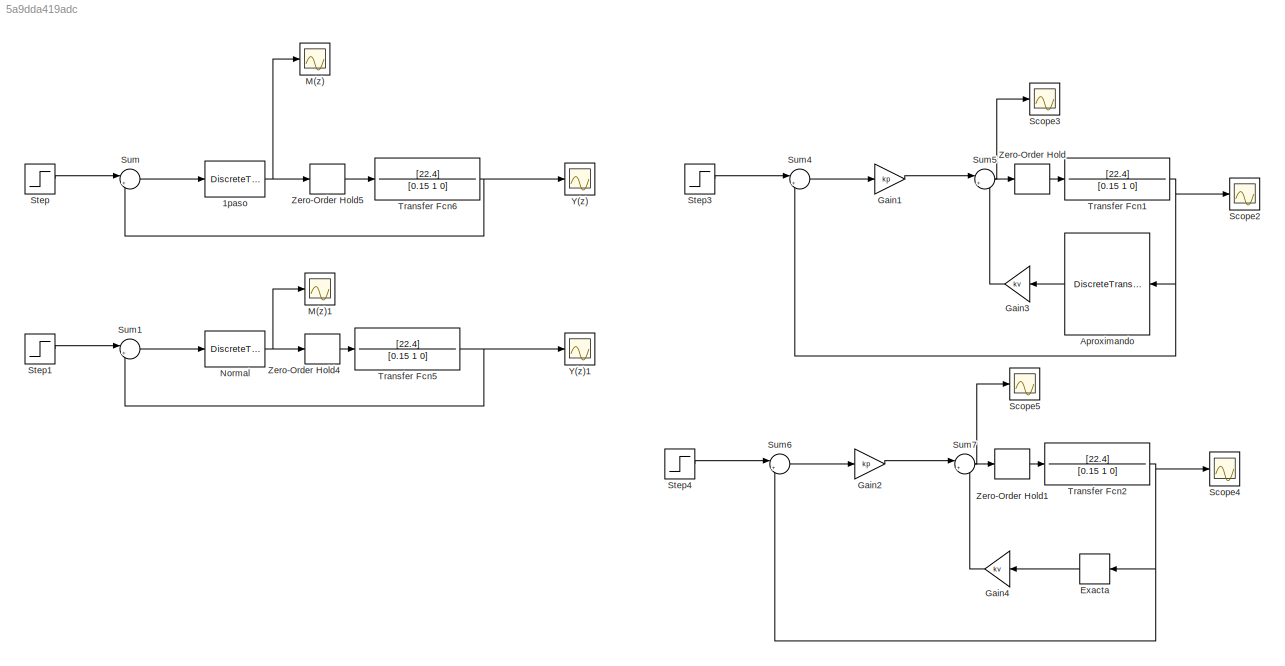
MODEL slx_5a9dda419adc
KIND model
CONFIG AbsTol = auto
CONFIG EnableMultiTasking = off
CONFIG FixedStep = 0.0001
CONFIG MaxStep = auto
CONFIG MinStep = auto
CONFIG RelTol = 1e-3
CONFIG SampleTimeConstraint = Unconstrained
CONFIG Solver = ode4
CONFIG SolverName = ode4
CONFIG StartTime = 0.0
CONFIG StopTime = 10
BLOCK [DiscreteTransferFcn] 1paso
  Denominator = Gc1p.den{1}
  InputPortMap = u0
  Numerator = Gc1p.num{1}
  Ports = [1, 1]
BLOCK [DiscreteTransferFcn] Aproximando
  Denominator = [Tm 0]
  InputPortMap = u0
  Numerator = [1 -1]
  Ports = [1, 1]
  SampleTime = 0.002
BLOCK [Derivative] Exacta
BLOCK [Gain] Gain1
  Gain = kp
  OutDataTypeStr = Inherit: Inherit via internal rule
  ParamDataTypeStr = Inherit: Inherit via internal rule
  SaturateOnIntegerOverflow = off
BLOCK [Gain] Gain2
  Gain = kp
  OutDataTypeStr = Inherit: Inherit via internal rule
  ParamDataTypeStr = Inherit: Inherit via internal rule
  SaturateOnIntegerOverflow = off
BLOCK [Gain] Gain3
  Gain = kv
  OutDataTypeStr = Inherit: Inherit via internal rule
  ParamDataTypeStr = Inherit: Inherit via internal rule
  SaturateOnIntegerOverflow = off
BLOCK [Gain] Gain4
  Gain = kv
  OutDataTypeStr = Inherit: Inherit via internal rule
  ParamDataTypeStr = Inherit: Inherit via internal rule
  SaturateOnIntegerOverflow = off
BLOCK [Scope] M(z)
  Floating = off
  NumInputPorts = 1
  Ports = [1]
  ScopeSpecificationString = Simulink.scopes.TimeScopeBlockCfg('CurrentConfiguration', extmgr.ConfigurationSet(extmgr.Configuration('Core','General UI',true),extmgr.Configuration('Core','Source UI',true),extmgr.Configuration('Sources','WiredSimulink',true,'DataLoggingVariableName','ScopeData1'),extmgr.Configuration('Visuals','Time Domain',true,'SerializedDisplays',{struct('MinYLimReal','-34.61779','MaxYLimReal','32.82063','YL...<+1424ch>
BLOCK [Scope] M(z)1
  Floating = off
  NumInputPorts = 1
  Ports = [1]
  ScopeSpecificationString = Simulink.scopes.TimeScopeBlockCfg('CurrentConfiguration', extmgr.ConfigurationSet(extmgr.Configuration('Core','General UI',true),extmgr.Configuration('Core','Source UI',true),extmgr.Configuration('Sources','WiredSimulink',true,'DataLoggingVariableName','ScopeData2'),extmgr.Configuration('Visuals','Time Domain',true,'SerializedDisplays',{struct('MinYLimReal','-8.58753','MaxYLimReal','10.07562','YLa...<+1423ch>
BLOCK [DiscreteTransferFcn] Normal
  Denominator = Gcdbn.den{1}
  InputPortMap = u0
  Numerator = Gcdbn.num{1}
  Ports = [1, 1]
BLOCK [Scope] Scope2
  Floating = off
  NumInputPorts = 1
  Ports = [1]
  ScopeSpecificationString = Simulink.scopes.TimeScopeBlockCfg('CurrentConfiguration', extmgr.ConfigurationSet(extmgr.Configuration('Core','General UI',true),extmgr.Configuration('Core','Source UI',true),extmgr.Configuration('Sources','WiredSimulink',true,'DataLoggingVariableName','ScopeData6'),extmgr.Configuration('Visuals','Time Domain',true,'SerializedDisplays',{struct('MinYLimReal','-0.125','MaxYLimReal','1.125','YLabelRe...<+1431ch>
BLOCK [Scope] Scope3
  Floating = off
  NumInputPorts = 1
  Ports = [1]
  ScopeSpecificationString = Simulink.scopes.TimeScopeBlockCfg('CurrentConfiguration', extmgr.ConfigurationSet(extmgr.Configuration('Core','General UI',true),extmgr.Configuration('Core','Source UI',true),extmgr.Configuration('Sources','WiredSimulink',true,'DataLoggingVariableName','ScopeData7'),extmgr.Configuration('Visuals','Time Domain',true,'SerializedDisplays',{struct('MinYLimReal','-3.64447','MaxYLimReal','3.91014','YLab...<+1392ch>
BLOCK [Scope] Scope4
  Floating = off
  NumInputPorts = 1
  Ports = [1]
  ScopeSpecificationString = Simulink.scopes.TimeScopeBlockCfg('CurrentConfiguration', extmgr.ConfigurationSet(extmgr.Configuration('Core','General UI',true),extmgr.Configuration('Core','Source UI',true),extmgr.Configuration('Sources','WiredSimulink',true,'DataLoggingVariableName','ScopeData1'),extmgr.Configuration('Visuals','Time Domain',true,'SerializedDisplays',{struct('MinYLimReal','-0.16025','MaxYLimReal','1.44228','YLab...<+1486ch>
BLOCK [Scope] Scope5
  Floating = off
  NumInputPorts = 1
  Ports = [1]
  ScopeSpecificationString = Simulink.scopes.TimeScopeBlockCfg('CurrentConfiguration', extmgr.ConfigurationSet(extmgr.Configuration('Core','General UI',true),extmgr.Configuration('Core','Source UI',true),extmgr.Configuration('Sources','WiredSimulink',true,'DataLoggingVariableName','ScopeData2'),extmgr.Configuration('Visuals','Time Domain',true,'SerializedDisplays',{struct('MinYLimReal','-1.21194','MaxYLimReal','3.63986','YLab...<+1392ch>
BLOCK [Step] Step
  SampleTime = 0
BLOCK [Step] Step1
  SampleTime = 0
BLOCK [Step] Step3
  SampleTime = 0
  Time = 0
BLOCK [Step] Step4
  SampleTime = 0
  Time = 0
BLOCK [Sum] Sum
  IconShape = round
  InputSameDT = off
  Inputs = |+-
  OutDataTypeStr = Inherit: Inherit via internal rule
  Ports = [2, 1]
  SaturateOnIntegerOverflow = off
BLOCK [Sum] Sum1
  IconShape = round
  InputSameDT = off
  Inputs = |+-
  OutDataTypeStr = Inherit: Inherit via internal rule
  Ports = [2, 1]
  SaturateOnIntegerOverflow = off
BLOCK [Sum] Sum4
  IconShape = round
  InputSameDT = off
  Inputs = |+-
  OutDataTypeStr = Inherit: Inherit via internal rule
  Ports = [2, 1]
  SaturateOnIntegerOverflow = off
BLOCK [Sum] Sum5
  IconShape = round
  InputSameDT = off
  Inputs = |++
  OutDataTypeStr = Inherit: Inherit via internal rule
  Ports = [2, 1]
  SaturateOnIntegerOverflow = off
BLOCK [Sum] Sum6
  IconShape = round
  InputSameDT = off
  Inputs = |+-
  OutDataTypeStr = Inherit: Inherit via internal rule
  Ports = [2, 1]
  SaturateOnIntegerOverflow = off
BLOCK [Sum] Sum7
  IconShape = round
  InputSameDT = off
  Inputs = |++
  OutDataTypeStr = Inherit: Inherit via internal rule
  Ports = [2, 1]
  SaturateOnIntegerOverflow = off
BLOCK [TransferFcn] Transfer Fcn1
  Denominator = [0.15 1 0]
  Numerator = [22.4]
BLOCK [TransferFcn] Transfer Fcn2
  Denominator = [0.15 1 0]
  Numerator = [22.4]
BLOCK [TransferFcn] Transfer Fcn5
  Denominator = [0.15 1 0]
  Numerator = [22.4]
BLOCK [TransferFcn] Transfer Fcn6
  Denominator = [0.15 1 0]
  Numerator = [22.4]
BLOCK [Scope] Y(z)
  Floating = off
  NumInputPorts = 1
  Ports = [1]
  ScopeSpecificationString = Simulink.scopes.TimeScopeBlockCfg('CurrentConfiguration', extmgr.ConfigurationSet(extmgr.Configuration('Core','General UI',true),extmgr.Configuration('Core','Source UI',true),extmgr.Configuration('Sources','WiredSimulink',true),extmgr.Configuration('Visuals','Time Domain',true,'SerializedDisplays',{struct('MinYLimReal','-0.21177','MaxYLimReal','1.90596','YLabelReal','','MinYLimMag','0.00000','MaxY...<+1358ch>
BLOCK [Scope] Y(z)1
  Floating = off
  NumInputPorts = 1
  Ports = [1]
  ScopeSpecificationString = Simulink.scopes.TimeScopeBlockCfg('CurrentConfiguration', extmgr.ConfigurationSet(extmgr.Configuration('Core','General UI',true),extmgr.Configuration('Core','Source UI',true),extmgr.Configuration('Sources','WiredSimulink',true,'DataLoggingVariableName','ScopeData3'),extmgr.Configuration('Visuals','Time Domain',true,'SerializedDisplays',{struct('MinYLimReal','-0.17464','MaxYLimReal','1.57172','YLab...<+1397ch>
BLOCK [ZeroOrderHold] Zero-Order Hold
  SampleTime = 0.03
BLOCK [ZeroOrderHold] Zero-Order Hold1
  SampleTime = 0.03
BLOCK [ZeroOrderHold] Zero-Order Hold4
  SampleTime = 0.03
BLOCK [ZeroOrderHold] Zero-Order Hold5
  SampleTime = 0.03
NET 1paso:1 -> M(z):1, Zero-Order Hold5:1
LINE Aproximando:1 -> Gain3:1
LINE Exacta:1 -> Gain4:1
LINE Gain1:1 -> Sum5:1
LINE Gain2:1 -> Sum7:1
LINE Gain3:1 -> Sum5:2
LINE Gain4:1 -> Sum7:2
NET Normal:1 -> M(z)1:1, Zero-Order Hold4:1
LINE Step1:1 -> Sum1:1
LINE Step3:1 -> Sum4:1
LINE Step4:1 -> Sum6:1
LINE Step:1 -> Sum:1
LINE Sum1:1 -> Normal:1
LINE Sum4:1 -> Gain1:1
NET Sum5:1 -> Scope3:1, Zero-Order Hold:1
LINE Sum6:1 -> Gain2:1
NET Sum7:1 -> Scope5:1, Zero-Order Hold1:1
LINE Sum:1 -> 1paso:1
NET Transfer Fcn1:1 -> Aproximando:1, Scope2:1, Sum4:2
NET Transfer Fcn2:1 -> Exacta:1, Scope4:1, Sum6:2
NET Transfer Fcn5:1 -> Sum1:2, Y(z)1:1
NET Transfer Fcn6:1 -> Sum:2, Y(z):1
LINE Zero-Order Hold1:1 -> Transfer Fcn2:1
LINE Zero-Order Hold4:1 -> Transfer Fcn5:1
LINE Zero-Order Hold5:1 -> Transfer Fcn6:1
LINE Zero-Order Hold:1 -> Transfer Fcn1:1
note: NET lines group one-source signal fan-out (src -> all destinations, sorted); 1:1 wires keep LINE
